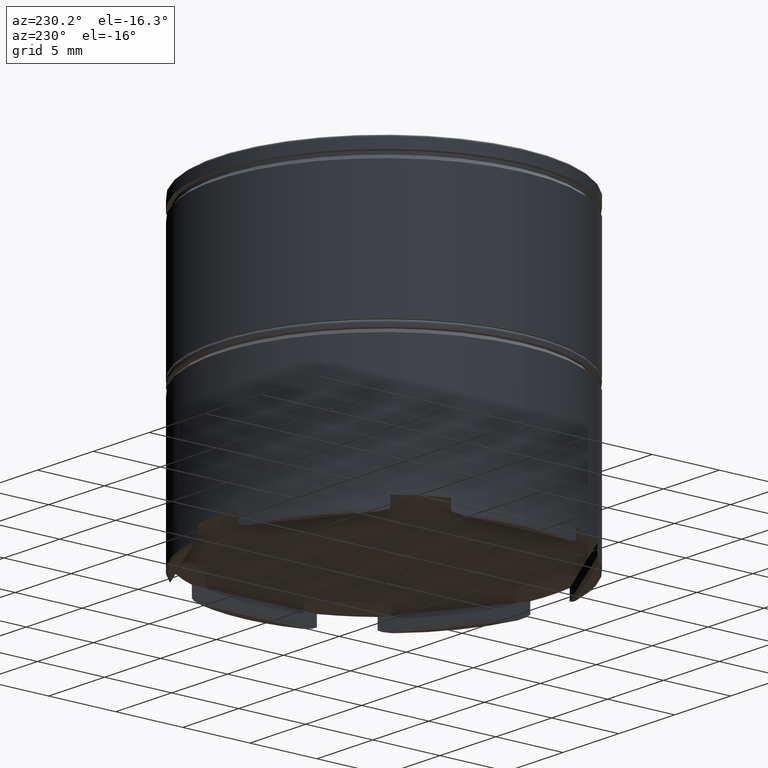
[diagram: clean part render]
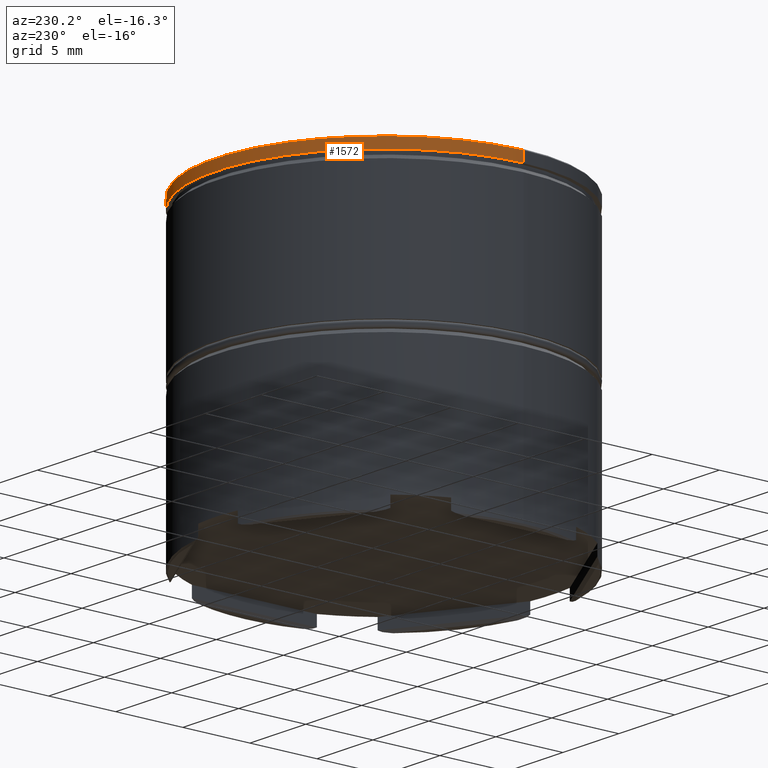
[diagram: same view with one face highlighted and labeled with its STEP entity id]
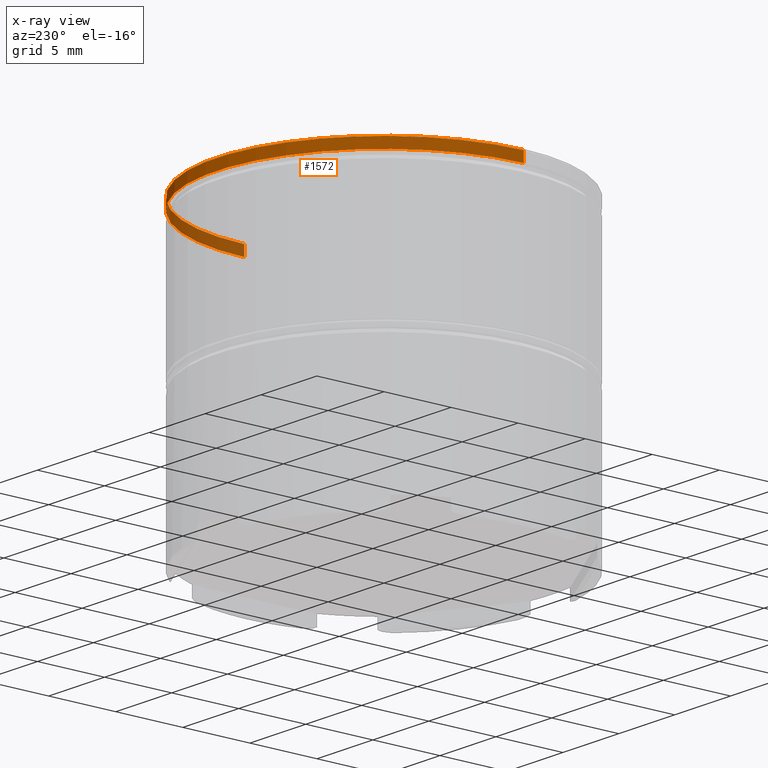
[diagram: x-ray of the same camera — body ghosted, the highlighted face saturated]
A machine part, auxiliary view. The second image highlights one B-rep face of the part: STEP entity #1572.
The next image is the same camera in x-ray: the body ghosted, the highlighted face saturated — about 17% of this face is hidden behind the body in this view.
In plain terms, the highlighted cylindrical surface (partial cylindrical patch) has radius 12.5 mm, axis along (-0, -0, 1).
Its self-contained STEP definition (entity closure, byte-faithful):
#37 = ORIENTED_EDGE ( 'NONE', *, *, #1423, .T. ) ;
#74 = AXIS2_PLACEMENT_3D ( 'NONE', #1359, #228, #325 ) ;
#148 = EDGE_CURVE ( 'NONE', #1495, #402, #406, .T. ) ;
#168 = DIRECTION ( 'NONE',  ( 1.000000000000000000, 0.000000000000000000, 0.000000000000000000 ) ) ;
#179 = DIRECTION ( 'NONE',  ( 1.000000000000000000, 0.000000000000000000, 0.000000000000000000 ) ) ;
#227 = CIRCLE ( 'NONE', #810, 12.50000000000000000 ) ;
#228 = DIRECTION ( 'NONE',  ( -0.000000000000000000, -0.000000000000000000, 1.000000000000000000 ) ) ;
#265 = LINE ( 'NONE', #1272, #1362 ) ;
#283 = CARTESIAN_POINT ( 'NONE',  ( 0.000000000000000000, 0.000000000000000000, -0.8749999999999998890 ) ) ;
#322 = EDGE_CURVE ( 'NONE', #1388, #402, #454, .T. ) ;
#325 = DIRECTION ( 'NONE',  ( 1.000000000000000000, 0.000000000000000000, 0.000000000000000000 ) ) ;
#348 = DIRECTION ( 'NONE',  ( -0.000000000000000000, -0.000000000000000000, 1.000000000000000000 ) ) ;
#402 = VERTEX_POINT ( 'NONE', #741 ) ;
#406 = CIRCLE ( 'NONE', #539, 12.50000000000000000 ) ;
#435 = CARTESIAN_POINT ( 'NONE',  ( 0.000000000000000000, 0.000000000000000000, -0.1000000000000045991 ) ) ;
#454 = LINE ( 'NONE', #1223, #705 ) ;
#539 = AXIS2_PLACEMENT_3D ( 'NONE', #435, #690, #168 ) ;
#546 = ORIENTED_EDGE ( 'NONE', *, *, #1348, .T. ) ;
#690 = DIRECTION ( 'NONE',  ( 0.000000000000000000, 0.000000000000000000, -1.000000000000000000 ) ) ;
#705 = VECTOR ( 'NONE', #348, 1000.000000000000000 ) ;
#709 = ORIENTED_EDGE ( 'NONE', *, *, #322, .F. ) ;
#714 = CYLINDRICAL_SURFACE ( 'NONE', #74, 12.50000000000000000 ) ;
#741 = CARTESIAN_POINT ( 'NONE',  ( 12.50000000000000000, 0.000000000000000000, -0.1000000000000045991 ) ) ;
#810 = AXIS2_PLACEMENT_3D ( 'NONE', #283, #1544, #179 ) ;
#1084 = ORIENTED_EDGE ( 'NONE', *, *, #148, .T. ) ;
#1223 = CARTESIAN_POINT ( 'NONE',  ( 12.50000000000000000, 0.000000000000000000, 0.000000000000000000 ) ) ;
#1251 = EDGE_LOOP ( 'NONE', ( #37, #546, #1084, #709 ) ) ;
#1272 = CARTESIAN_POINT ( 'NONE',  ( -12.50000000000000000, 1.530808498934191521E-15, 0.000000000000000000 ) ) ;
#1312 = CARTESIAN_POINT ( 'NONE',  ( 12.50000000000000000, 0.000000000000000000, -0.8749999999999998890 ) ) ;
#1348 = EDGE_CURVE ( 'NONE', #1535, #1495, #265, .T. ) ;
#1359 = CARTESIAN_POINT ( 'NONE',  ( 0.000000000000000000, 0.000000000000000000, 0.000000000000000000 ) ) ;
#1362 = VECTOR ( 'NONE', #1636, 1000.000000000000000 ) ;
#1388 = VERTEX_POINT ( 'NONE', #1312 ) ;
#1423 = EDGE_CURVE ( 'NONE', #1388, #1535, #227, .T. ) ;
#1425 = CARTESIAN_POINT ( 'NONE',  ( -12.50000000000000000, 1.530808498934191521E-15, -0.1000000000000045991 ) ) ;
#1461 = FACE_OUTER_BOUND ( 'NONE', #1251, .T. ) ;
#1495 = VERTEX_POINT ( 'NONE', #1425 ) ;
#1535 = VERTEX_POINT ( 'NONE', #1589 ) ;
#1544 = DIRECTION ( 'NONE',  ( -0.000000000000000000, -0.000000000000000000, 1.000000000000000000 ) ) ;
#1572 = ADVANCED_FACE ( 'NONE', ( #1461 ), #714, .T. ) ;
#1589 = CARTESIAN_POINT ( 'NONE',  ( -12.50000000000000000, 1.530808498934191521E-15, -0.8749999999999998890 ) ) ;
#1636 = DIRECTION ( 'NONE',  ( -0.000000000000000000, -0.000000000000000000, 1.000000000000000000 ) ) ;